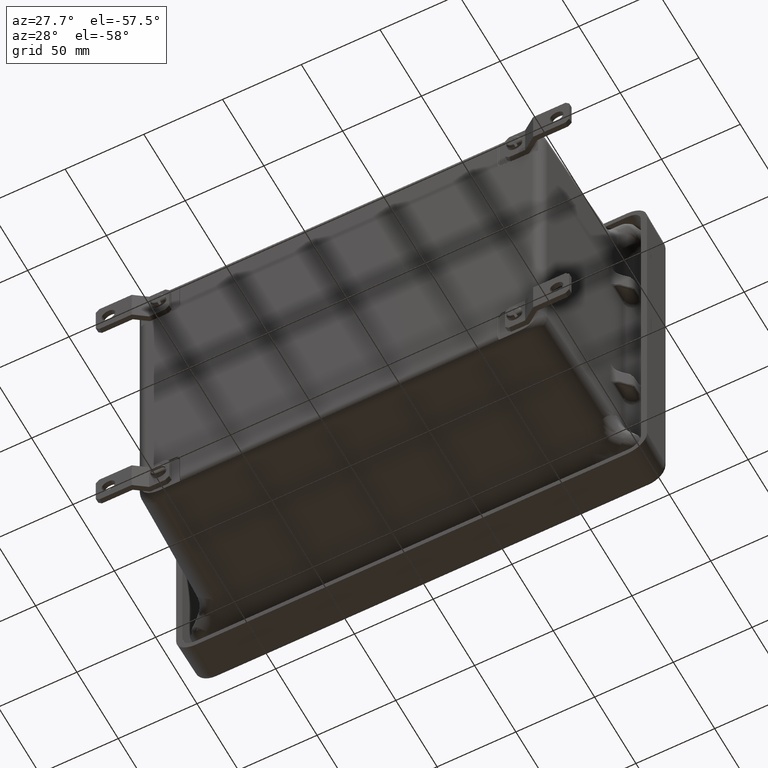
[diagram: clean part render]
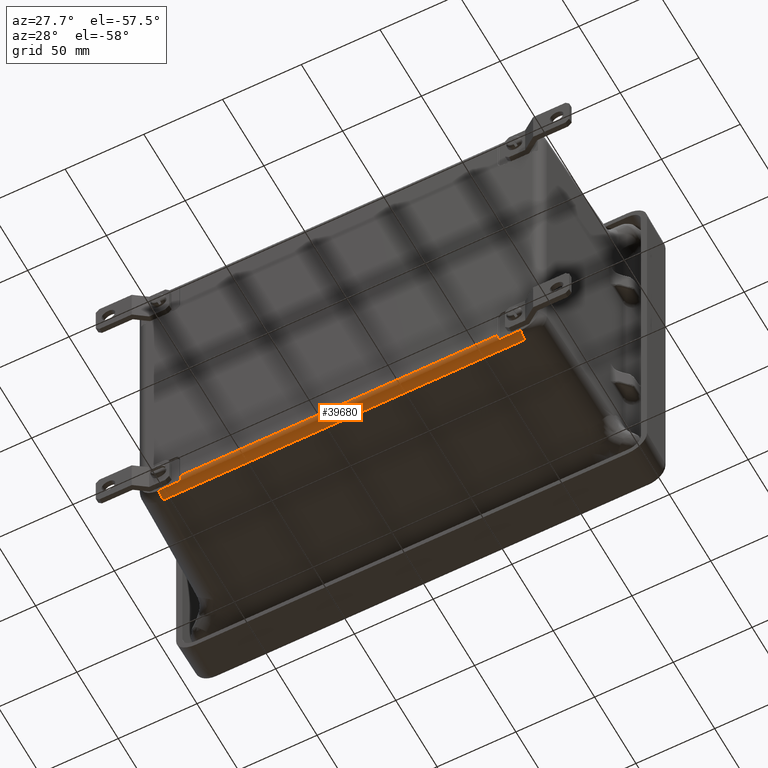
[diagram: same view with one face highlighted and labeled with its STEP entity id]
A machine part, auxiliary view. The second image highlights one B-rep face of the part: STEP entity #39680.
In plain terms, the highlighted cylindrical surface (edge-blend (fillet) strip) has radius 6.3589 mm, axis along (-1, 0, 0).
Its self-contained STEP definition (entity closure, byte-faithful):
#254 = DIRECTION ( 'NONE',  ( -1.000000000000000000, -0.0000000000000000000, 0.0000000000000000000 ) ) ;
#548 = CARTESIAN_POINT ( 'NONE',  ( -3.968270669994769900, -4.115180857701989000, -3.964364600681851100 ) ) ;
#1160 = CARTESIAN_POINT ( 'NONE',  ( -3.978401577436642800, -4.093290371949486900, -4.013251138994906600 ) ) ;
#1571 = CARTESIAN_POINT ( 'NONE',  ( 3.995856835648660800, -4.084710116394906400, -4.026878123927110300 ) ) ;
#1719 = CARTESIAN_POINT ( 'NONE',  ( 3.968197124827712100, -4.115180857701989000, -3.964364600681851100 ) ) ;
#2215 = VERTEX_POINT ( 'NONE', #27789 ) ;
#2650 = CIRCLE ( 'NONE', #30373, 0.2503500000000002400 ) ;
#2924 = CARTESIAN_POINT ( 'NONE',  ( 4.522285627416470900, -3.877086516394905800, -3.886994017528132800 ) ) ;
#3100 = EDGE_CURVE ( 'NONE', #8253, #29575, #32667, .T. ) ;
#3205 = ORIENTED_EDGE ( 'NONE', *, *, #13257, .F. ) ;
#4228 = CARTESIAN_POINT ( 'NONE',  ( 3.999371792661120800, -4.084710116394905600, -4.026878123927109400 ) ) ;
#4389 = CARTESIAN_POINT ( 'NONE',  ( -3.984229547930174600, -4.088801834757322100, -4.020633496062203000 ) ) ;
#4791 = CARTESIAN_POINT ( 'NONE',  ( 3.992438841457620400, -4.085375919333738000, -4.025897429900028100 ) ) ;
#5088 = ORIENTED_EDGE ( 'NONE', *, *, #40774, .T. ) ;
#5700 = ORIENTED_EDGE ( 'NONE', *, *, #17574, .T. ) ;
#6130 = DIRECTION ( 'NONE',  ( 0.0000000000000000000, 0.0000000000000000000, 1.000000000000000000 ) ) ;
#7607 =( BOUNDED_CURVE ( )  B_SPLINE_CURVE ( 3, ( #33510, #11108, #40040, #20760 ),
 .UNSPECIFIED., .F., .F. ) 
 B_SPLINE_CURVE_WITH_KNOTS ( ( 4, 4 ),
 ( 5.968991691712730600, 6.283185307179572900 ),
 .UNSPECIFIED. ) 
 CURVE ( )  GEOMETRIC_REPRESENTATION_ITEM ( )  RATIONAL_B_SPLINE_CURVE ( ( 1.000000000000000000, 0.9917904357860589700, 0.9917904357860589700, 1.000000000000000000 ) ) 
 REPRESENTATION_ITEM ( '' )  );
#7632 = CARTESIAN_POINT ( 'NONE',  ( -3.992533810304742300, -4.085370962386411600, -4.025904787363499400 ) ) ;
#8039 = CARTESIAN_POINT ( 'NONE',  ( 3.984149444980884100, -4.088807055668699100, -4.020624879401716500 ) ) ;
#8253 = VERTEX_POINT ( 'NONE', #548 ) ;
#10284 = CARTESIAN_POINT ( 'NONE',  ( -4.522359172583528600, -3.885823605394376700, -4.137191511072363600 ) ) ;
#10404 = DIRECTION ( 'NONE',  ( -1.000000000000000000, 0.0000000000000000000, 0.0000000000000000000 ) ) ;
#10512 = ORIENTED_EDGE ( 'NONE', *, *, #16623, .T. ) ;
#10649 = VERTEX_POINT ( 'NONE', #18657 ) ;
#10731 = CARTESIAN_POINT ( 'NONE',  ( -3.968827791225029600, -4.110658606856012500, -3.977357378857026200 ) ) ;
#10870 = CARTESIAN_POINT ( 'NONE',  ( -3.999445337828178500, -4.084710116394905600, -4.026878123927109400 ) ) ;
#10985 = VERTEX_POINT ( 'NONE', #33056 ) ;
#11108 = CARTESIAN_POINT ( 'NONE',  ( 3.967529753894842900, -4.123317481347881700, -3.939325574627417800 ) ) ;
#11176 = ORIENTED_EDGE ( 'NONE', *, *, #29102, .T. ) ;
#11284 = CARTESIAN_POINT ( 'NONE',  ( 3.978336949743146900, -4.093281449242908800, -4.013266519706572700 ) ) ;
#12097 = CARTESIAN_POINT ( 'NONE',  ( -3.967265453245076000, -4.127436516394905800, -3.886994017528132800 ) ) ;
#12669 = AXIS2_PLACEMENT_3D ( 'NONE', #23157, #19944, #32686 ) ;
#13257 = EDGE_CURVE ( 'NONE', #10649, #21637, #16368, .T. ) ;
#13500 = DIRECTION ( 'NONE',  ( -1.000000000000000000, 0.0000000000000000000, 0.0000000000000000000 ) ) ;
#13955 = CARTESIAN_POINT ( 'NONE',  ( -3.968270669994769900, -4.115180857701989000, -3.964364600681851100 ) ) ;
#14502 = CARTESIAN_POINT ( 'NONE',  ( 3.974370060066448200, -4.097931155713418100, -4.004950597643329500 ) ) ;
#14664 = CARTESIAN_POINT ( 'NONE',  ( 4.522285627416470900, -3.885823605394376700, -4.137191511072363600 ) ) ;
#15636 = VECTOR ( 'NONE', #10404, 39.37007874015748100 ) ;
#16368 = CIRCLE ( 'NONE', #38336, 0.2503500000000002400 ) ;
#16623 = EDGE_CURVE ( 'NONE', #10985, #29787, #7607, .T. ) ;
#16861 = CARTESIAN_POINT ( 'NONE',  ( -3.968270669994769900, -4.115180857701989000, -3.964364600681851100 ) ) ;
#17190 = CARTESIAN_POINT ( 'NONE',  ( -3.971550898963258600, -4.102518809127967200, -3.996079389931518600 ) ) ;
#17574 = EDGE_CURVE ( 'NONE', #19292, #2215, #2650, .T. ) ;
#17744 = CARTESIAN_POINT ( 'NONE',  ( 3.970313311533076200, -4.105397614623073300, -3.989928856559402400 ) ) ;
#17826 = VECTOR ( 'NONE', #40806, 39.37007874015748100 ) ;
#17885 = ORIENTED_EDGE ( 'NONE', *, *, #39954, .F. ) ;
#18316 = CARTESIAN_POINT ( 'NONE',  ( -4.522359172583528600, -4.084710116394905600, -4.026878123927109400 ) ) ;
#18657 = CARTESIAN_POINT ( 'NONE',  ( -4.522359172583528600, -3.885823605394376700, -4.137191511072363600 ) ) ;
#18791 = ORIENTED_EDGE ( 'NONE', *, *, #3100, .T. ) ;
#19292 = VERTEX_POINT ( 'NONE', #14664 ) ;
#19482 = CARTESIAN_POINT ( 'NONE',  ( -4.522359172583528600, -3.877086516394905800, -3.886994017528132800 ) ) ;
#19944 = DIRECTION ( 'NONE',  ( -1.000000000000000000, 0.0000000000000000000, 0.0000000000000000000 ) ) ;
#20376 = CARTESIAN_POINT ( 'NONE',  ( -3.975583290454688600, -4.096386820183875300, -4.007792794988036500 ) ) ;
#20419 = ORIENTED_EDGE ( 'NONE', *, *, #28669, .T. ) ;
#20760 = CARTESIAN_POINT ( 'NONE',  ( 3.967191908078017800, -4.127436516394905800, -3.886994017528132800 ) ) ;
#20933 = CARTESIAN_POINT ( 'NONE',  ( 3.968372045334403400, -4.113048217125665900, -3.970927426404077500 ) ) ;
#21441 = DIRECTION ( 'NONE',  ( 1.000000000000000000, -0.0000000000000000000, -0.0000000000000000000 ) ) ;
#21581 = EDGE_CURVE ( 'NONE', #34783, #8253, #27902, .T. ) ;
#21637 = VERTEX_POINT ( 'NONE', #39598 ) ;
#21992 = CARTESIAN_POINT ( 'NONE',  ( 3.967191908078017800, -4.127436516394905800, -3.886994017528132800 ) ) ;
#22695 = DIRECTION ( 'NONE',  ( 0.0000000000000000000, 0.0000000000000000000, 1.000000000000000000 ) ) ;
#23157 = CARTESIAN_POINT ( 'NONE',  ( -4.522359172583528600, -3.877086516394905800, -3.886994017528132800 ) ) ;
#23622 = CARTESIAN_POINT ( 'NONE',  ( -3.980094674549291300, -4.091723788536341100, -4.015888267438052500 ) ) ;
#23935 = ORIENTED_EDGE ( 'NONE', *, *, #21581, .T. ) ;
#24177 = LINE ( 'NONE', #32822, #15636 ) ;
#24868 = EDGE_LOOP ( 'NONE', ( #23935, #18791, #11176, #3205, #28795, #5700, #5088, #20419, #10512, #17885 ) ) ;
#25360 = DIRECTION ( 'NONE',  ( -1.000000000000000000, -0.0000000000000000000, 0.0000000000000000000 ) ) ;
#26863 = CARTESIAN_POINT ( 'NONE',  ( -3.986718604310971200, -4.087420779753558400, -4.022781020130056900 ) ) ;
#27120 = CARTESIAN_POINT ( 'NONE',  ( 3.999371792661120800, -4.084710116394905600, -4.026878123927109400 ) ) ;
#27259 = CARTESIAN_POINT ( 'NONE',  ( 3.986621519269010400, -4.087431692259543500, -4.022764192219213400 ) ) ;
#27789 = CARTESIAN_POINT ( 'NONE',  ( 4.522285627416470900, -4.084710116394905600, -4.026878123927109400 ) ) ;
#27902 =( BOUNDED_CURVE ( )  B_SPLINE_CURVE ( 3, ( #32820, #29600, #36074, #16861 ),
 .UNSPECIFIED., .F., .F. ) 
 B_SPLINE_CURVE_WITH_KNOTS ( ( 4, 4 ),
 ( 3.141592653589806000, 3.455786269056650100 ),
 .UNSPECIFIED. ) 
 CURVE ( )  GEOMETRIC_REPRESENTATION_ITEM ( )  RATIONAL_B_SPLINE_CURVE ( ( 1.000000000000000000, 0.9917904357860589700, 0.9917904357860589700, 1.000000000000000000 ) ) 
 REPRESENTATION_ITEM ( '' )  );
#27912 = CYLINDRICAL_SURFACE ( 'NONE', #12669, 0.2503500000000002400 ) ;
#28669 = EDGE_CURVE ( 'NONE', #41076, #10985, #32189, .T. ) ;
#28795 = ORIENTED_EDGE ( 'NONE', *, *, #39677, .F. ) ;
#28911 = FACE_OUTER_BOUND ( 'NONE', #24868, .T. ) ;
#29102 = EDGE_CURVE ( 'NONE', #29575, #21637, #24177, .T. ) ;
#29575 = VERTEX_POINT ( 'NONE', #29864 ) ;
#29600 = CARTESIAN_POINT ( 'NONE',  ( -3.967265453245076000, -4.127436516394905800, -3.913321901417832600 ) ) ;
#29787 = VERTEX_POINT ( 'NONE', #21992 ) ;
#29864 = CARTESIAN_POINT ( 'NONE',  ( -3.999445337828178500, -4.084710116394905600, -4.026878123927109400 ) ) ;
#30076 = CARTESIAN_POINT ( 'NONE',  ( -3.995929163139128300, -4.084710116394907300, -4.026878123927109400 ) ) ;
#30373 = AXIS2_PLACEMENT_3D ( 'NONE', #2924, #25360, #6130 ) ;
#30473 = CARTESIAN_POINT ( 'NONE',  ( 3.980037379509516100, -4.091711719804476600, -4.015908004577108100 ) ) ;
#32189 = B_SPLINE_CURVE_WITH_KNOTS ( 'NONE', 3,
 ( #27120, #1571, #4791, #27259, #8039, #30473, #11284, #33679, #14502, #36949, #17744, #40208, #20933, #1719 ),
 .UNSPECIFIED., .F., .F.,
 ( 4, 2, 2, 2, 2, 2, 4 ),
 ( 0.0000000000000000000, 0.0002675940815743780700, 0.0005351881631487561400, 0.0008027822447231341600, 0.001070376326297512300, 0.001605564489446323000, 0.002140752652595133900 ),
 .UNSPECIFIED. ) ;
#32667 = B_SPLINE_CURVE_WITH_KNOTS ( 'NONE', 3,
 ( #13955, #33142, #10731, #36410, #17190, #39660, #20376, #1160, #23622, #4389, #26863, #7632, #30076, #10870 ),
 .UNSPECIFIED., .F., .F.,
 ( 4, 2, 2, 2, 2, 2, 4 ),
 ( 0.0000000000000000000, 0.0005220647425910642000, 0.001044129485182128400, 0.001305161856477678300, 0.001566194227773227900, 0.001827226599068777800, 0.002088258970364327500 ),
 .UNSPECIFIED. ) ;
#32686 = DIRECTION ( 'NONE',  ( 0.0000000000000000000, 0.0000000000000000000, 1.000000000000000000 ) ) ;
#32820 = CARTESIAN_POINT ( 'NONE',  ( -3.967265453245076000, -4.127436516394905800, -3.886994017528132800 ) ) ;
#32822 = CARTESIAN_POINT ( 'NONE',  ( -4.522359172583528600, -4.084710116394905600, -4.026878123927109400 ) ) ;
#33056 = CARTESIAN_POINT ( 'NONE',  ( 3.968197124827712100, -4.115180857701989000, -3.964364600681851100 ) ) ;
#33142 = CARTESIAN_POINT ( 'NONE',  ( -3.968445596322141400, -4.113048146159618700, -3.970927644789583200 ) ) ;
#33510 = CARTESIAN_POINT ( 'NONE',  ( 3.968197124827712100, -4.115180857701989000, -3.964364600681851100 ) ) ;
#33679 = CARTESIAN_POINT ( 'NONE',  ( 3.975513095179465900, -4.096382268545161400, -4.007801165017054900 ) ) ;
#34783 = VERTEX_POINT ( 'NONE', #12097 ) ;
#34860 = LINE ( 'NONE', #18316, #17826 ) ;
#36074 = CARTESIAN_POINT ( 'NONE',  ( -3.967603299061901500, -4.123317481347881700, -3.939325574627418300 ) ) ;
#36410 = CARTESIAN_POINT ( 'NONE',  ( -3.970384958254587400, -4.105403142163406300, -3.989916206149993100 ) ) ;
#36949 = CARTESIAN_POINT ( 'NONE',  ( 3.971487939953130200, -4.102499492119720000, -3.996118079529441300 ) ) ;
#37450 = VECTOR ( 'NONE', #13500, 39.37007874015748100 ) ;
#37940 = VECTOR ( 'NONE', #21441, 39.37007874015748100 ) ;
#38336 = AXIS2_PLACEMENT_3D ( 'NONE', #19482, #254, #22695 ) ;
#38468 = LINE ( 'NONE', #10284, #37450 ) ;
#38955 = LINE ( 'NONE', #40745, #37940 ) ;
#39598 = CARTESIAN_POINT ( 'NONE',  ( -4.522359172583528600, -4.084710116394905600, -4.026878123927109400 ) ) ;
#39660 = CARTESIAN_POINT ( 'NONE',  ( -3.974438831769029800, -4.097937459914599700, -4.004939076310933800 ) ) ;
#39677 = EDGE_CURVE ( 'NONE', #19292, #10649, #38468, .T. ) ;
#39680 = ADVANCED_FACE ( 'NONE', ( #28911 ), #27912, .T. ) ;
#39954 = EDGE_CURVE ( 'NONE', #34783, #29787, #38955, .T. ) ;
#40040 = CARTESIAN_POINT ( 'NONE',  ( 3.967191908078016900, -4.127436516394905800, -3.913321901417832200 ) ) ;
#40208 = CARTESIAN_POINT ( 'NONE',  ( 3.968754159535043100, -4.110658020149232400, -3.977359338832756800 ) ) ;
#40745 = CARTESIAN_POINT ( 'NONE',  ( -4.522359172583528600, -4.127436516394905800, -3.886994017528132800 ) ) ;
#40774 = EDGE_CURVE ( 'NONE', #2215, #41076, #34860, .T. ) ;
#40806 = DIRECTION ( 'NONE',  ( -1.000000000000000000, 0.0000000000000000000, 0.0000000000000000000 ) ) ;
#41076 = VERTEX_POINT ( 'NONE', #4228 ) ;